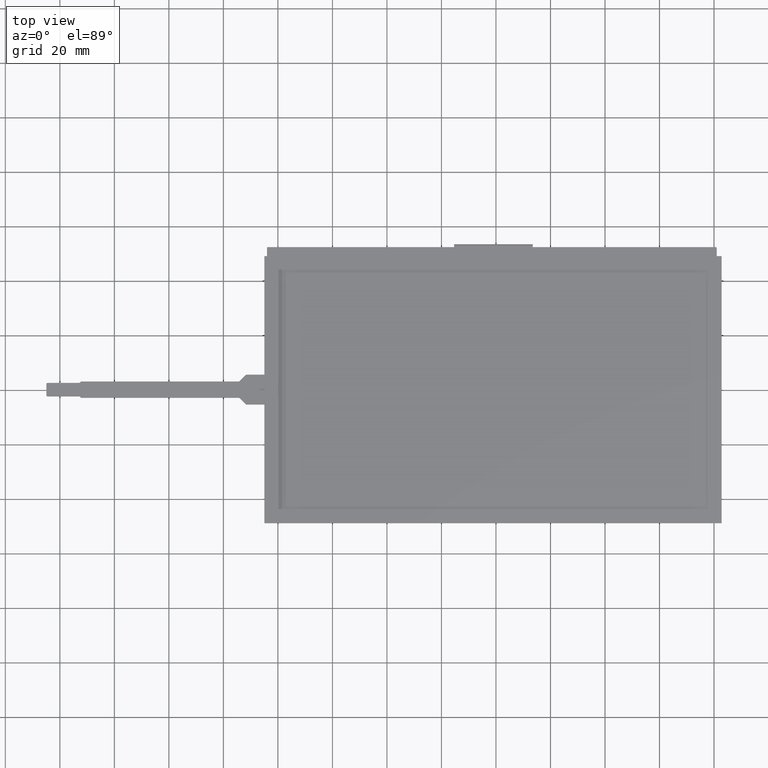
[diagram: clean part render]
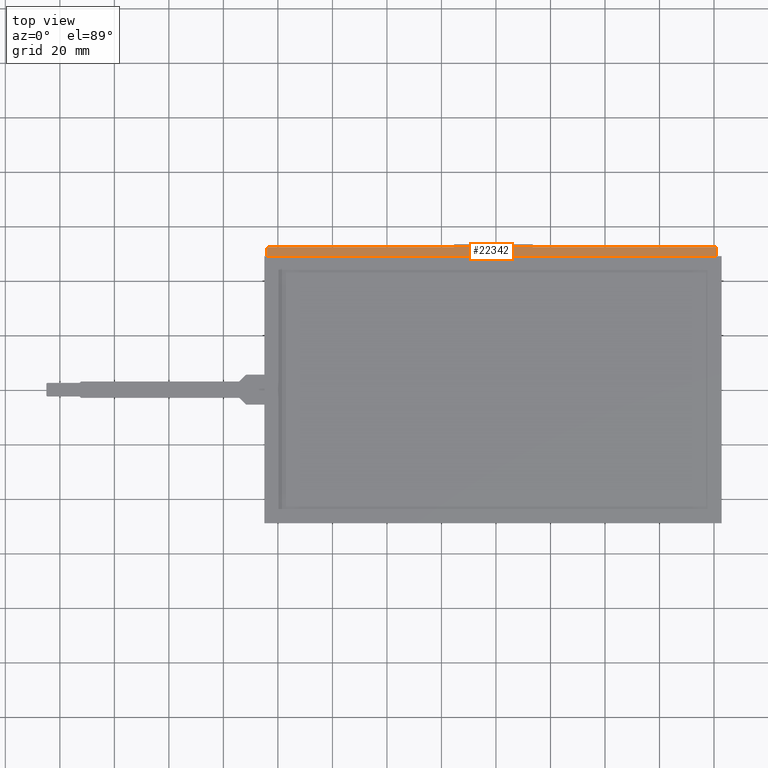
[diagram: same view with one face highlighted and labeled with its STEP entity id]
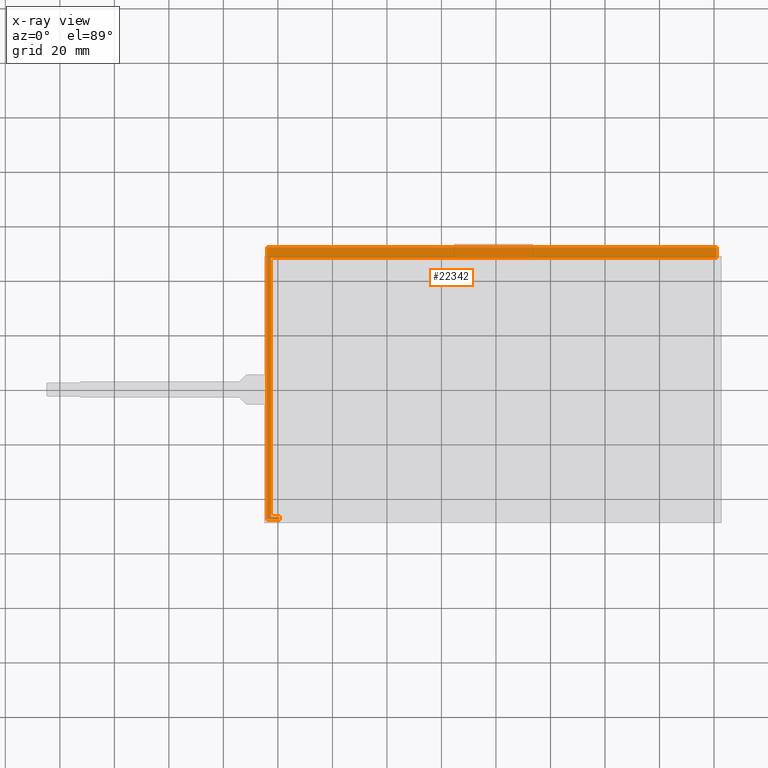
[diagram: x-ray of the same camera — body ghosted, the highlighted face saturated]
A machine part, top view. The second image highlights one B-rep face of the part: STEP entity #22342.
The next image is the same camera in x-ray: the body ghosted, the highlighted face saturated — about 0% of this face is hidden behind the body in this view.
In plain terms, the highlighted planar face has unit normal (0, -0, -1).
Its self-contained STEP definition (entity closure, byte-faithful):
#473=CIRCLE('',#23957,0.329999999999997);
#474=CIRCLE('',#23960,0.329999999999997);
#475=CIRCLE('',#23963,0.33);
#1862=FACE_OUTER_BOUND('',#3086,.T.);
#3086=EDGE_LOOP('',(#20094,#20095,#20096,#20097,#20098,#20099,#20100,#20101,
#20102,#20103,#20104));
#3241=LINE('',#30188,#5985);
#3259=LINE('',#30224,#6003);
#3261=LINE('',#30228,#6005);
#3263=LINE('',#30231,#6007);
#3264=LINE('',#30234,#6008);
#5785=LINE('',#36188,#8529);
#5788=LINE('',#36196,#8532);
#5790=LINE('',#36201,#8534);
#5985=VECTOR('',#24224,10.);
#6003=VECTOR('',#24246,1000.);
#6005=VECTOR('',#24250,10.);
#6007=VECTOR('',#24254,10.);
#6008=VECTOR('',#24257,10.);
#8529=VECTOR('',#29736,1000.);
#8532=VECTOR('',#29745,1000.);
#8534=VECTOR('',#29753,1000.);
#8703=VERTEX_POINT('',#30186);
#8704=VERTEX_POINT('',#30187);
#8719=VERTEX_POINT('',#30221);
#8720=VERTEX_POINT('',#30223);
#8721=VERTEX_POINT('',#30227);
#8722=VERTEX_POINT('',#30233);
#10674=VERTEX_POINT('',#36181);
#10675=VERTEX_POINT('',#36182);
#10676=VERTEX_POINT('',#36187);
#10677=VERTEX_POINT('',#36191);
#10678=VERTEX_POINT('',#36195);
#10833=EDGE_CURVE('',#8703,#8704,#3241,.T.);
#10851=EDGE_CURVE('',#8720,#8719,#3259,.T.);
#10853=EDGE_CURVE('',#8721,#8720,#3261,.T.);
#10855=EDGE_CURVE('',#8704,#8721,#3263,.T.);
#10856=EDGE_CURVE('',#8722,#8703,#3264,.T.);
#13826=EDGE_CURVE('',#10674,#10675,#473,.T.);
#13829=EDGE_CURVE('',#10676,#10674,#5785,.T.);
#13831=EDGE_CURVE('',#10677,#10676,#474,.T.);
#13833=EDGE_CURVE('',#10678,#10677,#5788,.T.);
#13835=EDGE_CURVE('',#8719,#10678,#475,.T.);
#13836=EDGE_CURVE('',#10675,#8722,#5790,.T.);
#20094=ORIENTED_EDGE('',*,*,#10855,.T.);
#20095=ORIENTED_EDGE('',*,*,#10853,.T.);
#20096=ORIENTED_EDGE('',*,*,#10851,.T.);
#20097=ORIENTED_EDGE('',*,*,#13835,.T.);
#20098=ORIENTED_EDGE('',*,*,#13833,.T.);
#20099=ORIENTED_EDGE('',*,*,#13831,.T.);
#20100=ORIENTED_EDGE('',*,*,#13829,.T.);
#20101=ORIENTED_EDGE('',*,*,#13826,.T.);
#20102=ORIENTED_EDGE('',*,*,#13836,.T.);
#20103=ORIENTED_EDGE('',*,*,#10856,.T.);
#20104=ORIENTED_EDGE('',*,*,#10833,.T.);
#21206=PLANE('',#23965);
#22342=ADVANCED_FACE('',(#1862),#21206,.F.);
#23957=AXIS2_PLACEMENT_3D('',#36183,#29730,#29731);
#23960=AXIS2_PLACEMENT_3D('',#36192,#29740,#29741);
#23963=AXIS2_PLACEMENT_3D('',#36199,#29749,#29750);
#23965=AXIS2_PLACEMENT_3D('',#36202,#29754,#29755);
#24224=DIRECTION('',(-1.,-7.42461647718078E-16,1.83030927347115E-47));
#24246=DIRECTION('',(9.09895546683146E-48,1.,-2.46519032881566E-32));
#24250=DIRECTION('',(1.,1.08084999533074E-46,-2.66450095538979E-78));
#24254=DIRECTION('',(-7.42461647718078E-16,1.,-2.46519032881566E-32));
#24257=DIRECTION('',(9.09895546683142E-48,1.,-2.46519032881566E-32));
#29730=DIRECTION('center_axis',(0.,2.46519032881566E-32,1.));
#29731=DIRECTION('ref_axis',(1.,-9.09895546683146E-48,2.24306570191573E-79));
#29736=DIRECTION('',(-9.09895546683146E-48,-1.,2.46519032881566E-32));
#29740=DIRECTION('center_axis',(0.,2.46519032881566E-32,1.));
#29741=DIRECTION('ref_axis',(1.,-9.09895546683146E-48,2.24306570191573E-79));
#29745=DIRECTION('',(-1.,9.09895546683146E-48,-2.24306570191573E-79));
#29749=DIRECTION('center_axis',(0.,2.46519032881566E-32,1.));
#29750=DIRECTION('ref_axis',(1.,-9.09895546683146E-48,2.24306570191573E-79));
#29753=DIRECTION('',(1.,-9.09895546683146E-48,2.24306570191573E-79));
#29754=DIRECTION('center_axis',(0.,-2.46519032881566E-32,-1.));
#29755=DIRECTION('ref_axis',(1.,-9.09895546683146E-48,2.24306570191573E-79));
#30186=CARTESIAN_POINT('',(-79.515,-46.6399999999999,-2.27000000000001));
#30187=CARTESIAN_POINT('',(-82.5149999999999,-46.6399999999999,-2.27000000000001));
#30188=CARTESIAN_POINT('',(-81.6,-46.6399999999999,-2.27000000000001));
#30221=CARTESIAN_POINT('',(80.985,52.03,-2.27000000000001));
#30223=CARTESIAN_POINT('',(80.985,48.36,-2.27000000000001));
#30224=CARTESIAN_POINT('',(80.985,52.03,-2.27000000000001));
#30227=CARTESIAN_POINT('',(-82.515,48.3599999999999,-2.27000000000001));
#30228=CARTESIAN_POINT('',(-2.6,48.36,-2.27000000000001));
#30231=CARTESIAN_POINT('',(-82.5149999999999,-0.975000000000028,-2.27000000000001));
#30233=CARTESIAN_POINT('',(-79.515,-47.64,-2.27000000000001));
#30234=CARTESIAN_POINT('',(-79.515,-47.475,-2.27000000000001));
#36181=CARTESIAN_POINT('',(-84.015,-47.31,-2.27000000000001));
#36182=CARTESIAN_POINT('',(-83.685,-47.64,-2.27000000000001));
#36183=CARTESIAN_POINT('Origin',(-83.685,-47.31,-2.27000000000001));
#36187=CARTESIAN_POINT('',(-84.015,52.03,-2.27000000000001));
#36188=CARTESIAN_POINT('',(-84.015,52.03,-2.27000000000001));
#36191=CARTESIAN_POINT('',(-83.685,52.36,-2.27000000000001));
#36192=CARTESIAN_POINT('Origin',(-83.685,52.03,-2.27000000000001));
#36195=CARTESIAN_POINT('',(80.655,52.36,-2.27000000000001));
#36196=CARTESIAN_POINT('',(80.655,52.36,-2.27000000000001));
#36199=CARTESIAN_POINT('Origin',(80.655,52.03,-2.27000000000001));
#36201=CARTESIAN_POINT('',(80.655,-47.64,-2.27000000000001));
#36202=CARTESIAN_POINT('Origin',(-83.685,-47.31,-2.27000000000001));